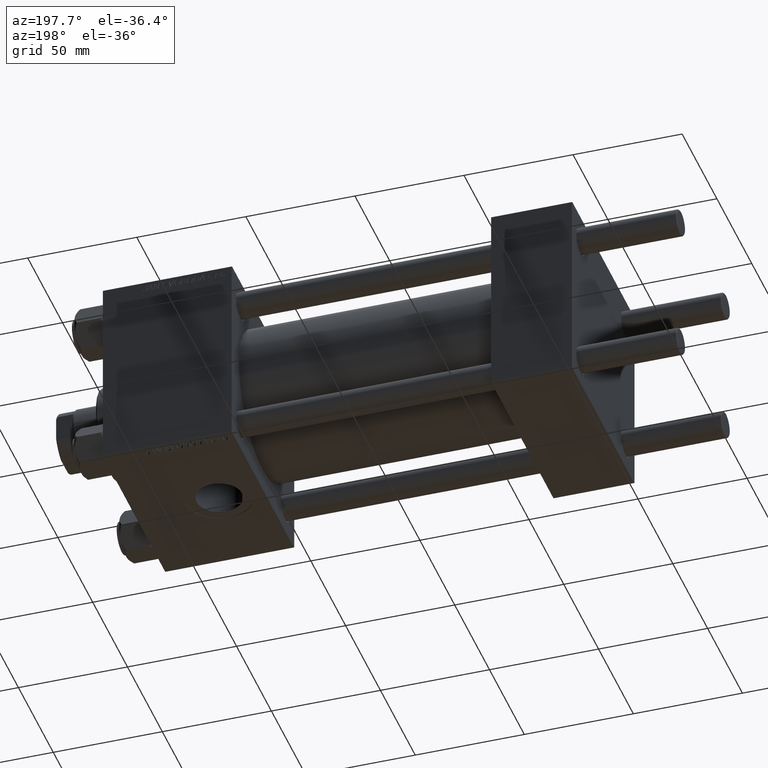
[diagram: clean part render]
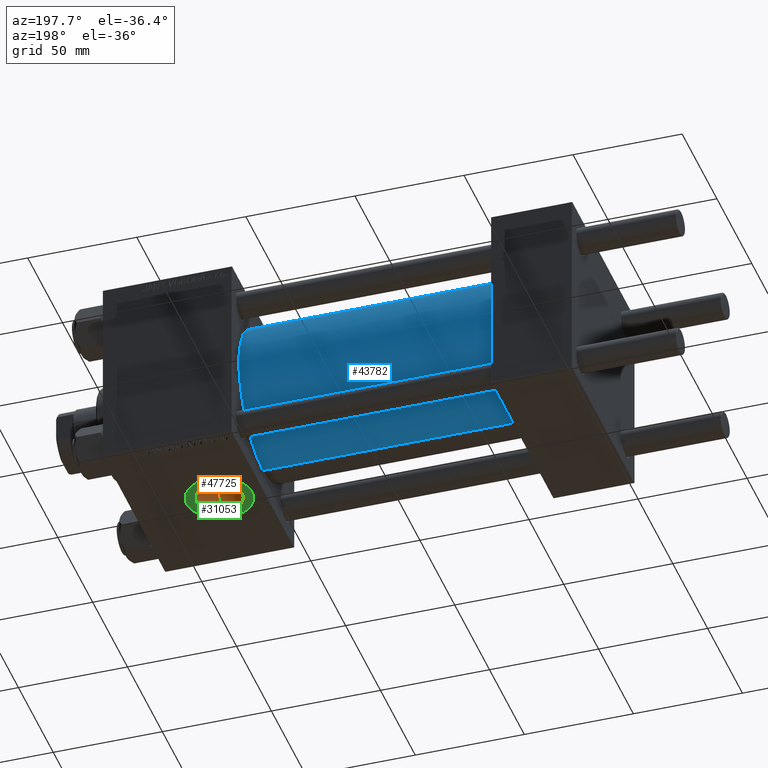
[diagram: same view with three faces highlighted in distinct colors, each labeled with its STEP entity id]
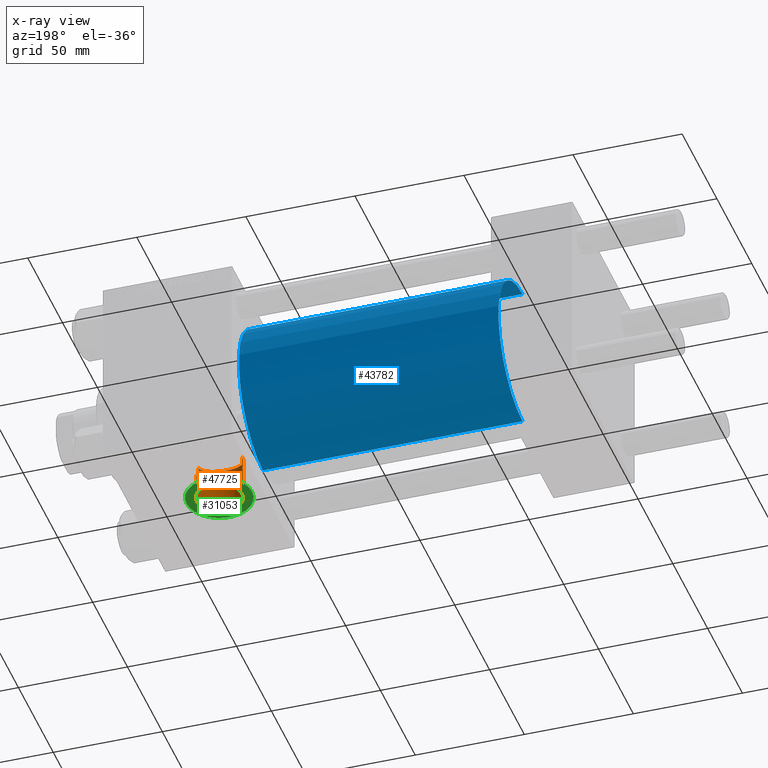
[diagram: x-ray of the same camera — body ghosted, the three highlighted faces saturated]
A machine part, auxiliary view with three faces highlighted in distinct colors.
The next image is the same camera in x-ray (body ghosted, the three faces saturated) — at least one of them is partly hidden behind the body in this view.
Their STEP definitions:

[orange] entity #47725 — the highlighted cylindrical surface (edge-blend (fillet) strip) has radius 10.48 mm, axis along (-0, -0, -1).
#190 = CARTESIAN_POINT ( 'NONE',  ( 186.1786094161472818, -2.580503443403245889, -24.87491648879076678 ) ) ;
#934 = CARTESIAN_POINT ( 'NONE',  ( 184.5617753468522153, -6.078148766063359076, -24.25639871560570526 ) ) ;
#1973 = LINE ( 'NONE', #24992, #11387 ) ;
#2133 = DIRECTION ( 'NONE',  ( -0.000000000000000000, -0.000000000000000000, -1.000000000000000000 ) ) ;
#2264 = CARTESIAN_POINT ( 'NONE',  ( 165.5200000000000102, 0.000000000000000000, 45.00100000000001899 ) ) ;
#2522 = CARTESIAN_POINT ( 'NONE',  ( 186.2999999999999829, -1.934011375354246276, -29.93759509379469819 ) ) ;
#4319 = CARTESIAN_POINT ( 'NONE',  ( 186.4799999999999898, 3.211609313723368512E-16, -30.00000000000000000 ) ) ;
#4379 = EDGE_CURVE ( 'NONE', #20457, #23580, #21238, .T. ) ;
#4490 = CARTESIAN_POINT ( 'NONE',  ( 185.5188295761804227, -4.396109388522424055, -24.61219324324235558 ) ) ;
#4736 = EDGE_CURVE ( 'NONE', #7323, #11211, #32859, .T. ) ;
#6528 = CARTESIAN_POINT ( 'NONE',  ( 167.4437381693998361, -6.085402802302656511, -24.25447456549319014 ) ) ;
#6785 = CARTESIAN_POINT ( 'NONE',  ( 175.0235039242022310, -10.44949535005050301, -22.71146874282110772 ) ) ;
#7278 = CARTESIAN_POINT ( 'NONE',  ( 165.7624658305543335, -2.264613839882682722, -24.89927104389817103 ) ) ;
#7323 = VERTEX_POINT ( 'NONE', #27364 ) ;
#7521 = CARTESIAN_POINT ( 'NONE',  ( 171.0248463731257402, -9.229325018898098421, -23.23452960213939988 ) ) ;
#7834 = CYLINDRICAL_SURFACE ( 'NONE', #33940, 10.47999999999998977 ) ;
#7959 = DIRECTION ( 'NONE',  ( 0.000000000000000000, 0.000000000000000000, -1.000000000000000000 ) ) ;
#9099 = DIRECTION ( 'NONE',  ( -0.000000000000000000, -0.000000000000000000, -1.000000000000000000 ) ) ;
#10315 = CARTESIAN_POINT ( 'NONE',  ( 167.8366666851091793, -6.602754969198486812, -24.11729512780175000 ) ) ;
#10908 = ORIENTED_EDGE ( 'NONE', *, *, #32405, .T. ) ;
#11141 = DIRECTION ( 'NONE',  ( -0.000000000000000000, -0.000000000000000000, -1.000000000000000000 ) ) ;
#11211 = VERTEX_POINT ( 'NONE', #18057 ) ;
#11324 = CARTESIAN_POINT ( 'NONE',  ( 169.1664433524416040, -7.971438572255705068, -23.69861894829193361 ) ) ;
#11387 = VECTOR ( 'NONE', #20952, 1000.000000000000000 ) ;
#11910 = VERTEX_POINT ( 'NONE', #21357 ) ;
#13264 = CARTESIAN_POINT ( 'NONE',  ( 186.2999999999999829, -1.934011375354246276, -24.92507973909011199 ) ) ;
#14834 = CIRCLE ( 'NONE', #49515, 10.47999999999998977 ) ;
#15134 = CARTESIAN_POINT ( 'NONE',  ( 166.4771871709745028, -4.423433031421226680, -24.61313550369477454 ) ) ;
#15635 = CARTESIAN_POINT ( 'NONE',  ( 177.6368862508291215, -10.37226752492872883, -22.74688258904294713 ) ) ;
#16383 = CARTESIAN_POINT ( 'NONE',  ( 185.0731273901010923, -5.254819858100577612, -24.44311888910906916 ) ) ;
#16761 = CARTESIAN_POINT ( 'NONE',  ( 176.0000000000000000, 0.000000000000000000, -44.79999999999999716 ) ) ;
#16893 = VERTEX_POINT ( 'NONE', #13264 ) ;
#17943 = CARTESIAN_POINT ( 'NONE',  ( 173.4216632649265648, -10.16312239748898705, -22.84120449468248282 ) ) ;
#18057 = CARTESIAN_POINT ( 'NONE',  ( 165.5200000000000102, 0.000000000000000000, -44.79999999999999716 ) ) ;
#18197 = CARTESIAN_POINT ( 'NONE',  ( 171.8825192181714954, -9.658443335916404138, -23.06099947694143992 ) ) ;
#18791 = B_SPLINE_CURVE_WITH_KNOTS ( 'NONE', 3,
 ( #30308, #26526, #41931, #7278, #22723, #34340, #44964, #15134, #41437, #6528, #10315, #30545, #11324, #26778, #21979, #42173, #7521, #18197, #33587, #17943, #25772, #41180, #6785, #49013, #47217, #34833, #15635, #31041, #23473, #27771, #34580, #35083, #19431, #39132, #35583, #31291, #43409, #934, #16383, #43166, #4490, #46468, #31544, #190, #19929 ),
 .UNSPECIFIED., .F., .F.,
 ( 4, 2, 2, 2, 2, 2, 2, 2, 2, 2, 2, 1, 2, 2, 2, 2, 2, 2, 2, 2, 2, 2, 4 ),
 ( 0.000000000000000000, 0.001950832952766653550, 0.002926249429149981301, 0.003901665905533308835, 0.005852498858299995561, 0.007803331811066681854, 0.009754164763833369015, 0.01072958124021668007, 0.01170499771659999112, 0.01365583066936654037, 0.01463124714574985143, 0.01560666362213316595, 0.01658208009851647874, 0.01755749657489978979, 0.01950832952766641884, 0.02145916248043304095, 0.02340999543319967000, 0.02438541190958301574, 0.02536082838596635455, 0.02731166133873305299, 0.02828707781511637792, 0.02926249429149969591, 0.03121332724426637353 ),
 .UNSPECIFIED. ) ;
#19431 = CARTESIAN_POINT ( 'NONE',  ( 182.5881842815778953, -8.156529320537604377, -23.63288506601811179 ) ) ;
#19497 = FACE_OUTER_BOUND ( 'NONE', #23468, .T. ) ;
#19929 = CARTESIAN_POINT ( 'NONE',  ( 186.2999999999999829, -1.934011375354246276, -24.92507973909011199 ) ) ;
#20457 = VERTEX_POINT ( 'NONE', #4319 ) ;
#20952 = DIRECTION ( 'NONE',  ( -0.000000000000000000, -0.000000000000000000, -1.000000000000000000 ) ) ;
#21238 = B_SPLINE_CURVE_WITH_KNOTS ( 'NONE', 3,
 ( #28712, #47417, #39578, #36034 ),
 .UNSPECIFIED., .F., .F.,
 ( 4, 4 ),
 ( 0.001934011375354245969, 0.003868022750708492372 ),
 .UNSPECIFIED. ) ;
#21357 = CARTESIAN_POINT ( 'NONE',  ( 186.4799999999999898, 1.283429845506424108E-15, -44.79999999999999716 ) ) ;
#21979 = CARTESIAN_POINT ( 'NONE',  ( 170.2003815447181978, -8.734860140023595676, -23.42509368751975884 ) ) ;
#22723 = CARTESIAN_POINT ( 'NONE',  ( 165.8374462348556051, -2.580507450933927860, -24.86846075284818980 ) ) ;
#22789 = DIRECTION ( 'NONE',  ( -1.000000000000000000, 0.000000000000000000, 0.000000000000000000 ) ) ;
#23410 = DIRECTION ( 'NONE',  ( -1.000000000000000000, 0.000000000000000000, 0.000000000000000000 ) ) ;
#23468 = EDGE_LOOP ( 'NONE', ( #40425, #39690, #33527, #40839, #29145, #10908 ) ) ;
#23473 = CARTESIAN_POINT ( 'NONE',  ( 179.5191464987686345, -9.892677015601863744, -22.96025190858006226 ) ) ;
#23580 = VERTEX_POINT ( 'NONE', #2522 ) ;
#24992 = CARTESIAN_POINT ( 'NONE',  ( 186.4799999999999898, 1.283429845506424503E-15, 45.00100000000001899 ) ) ;
#25772 = CARTESIAN_POINT ( 'NONE',  ( 173.7415073116948463, -10.23891767422755983, -22.80721217129550737 ) ) ;
#26101 = VECTOR ( 'NONE', #2133, 1000.000000000000000 ) ;
#26526 = CARTESIAN_POINT ( 'NONE',  ( 165.5199999999999818, -0.6601608298313265122, -24.99999999999999289 ) ) ;
#26778 = CARTESIAN_POINT ( 'NONE',  ( 169.9333177349950006, -8.551520252980353121, -23.49284134805247604 ) ) ;
#27083 = VECTOR ( 'NONE', #9099, 1000.000000000000000 ) ;
#27233 = EDGE_CURVE ( 'NONE', #20457, #11910, #1973, .T. ) ;
#27364 = CARTESIAN_POINT ( 'NONE',  ( 165.5200000000000102, 0.000000000000000000, -25.00000000000000000 ) ) ;
#27771 = CARTESIAN_POINT ( 'NONE',  ( 180.1305158875483414, -9.653130961559705625, -23.06326223111442530 ) ) ;
#28712 = CARTESIAN_POINT ( 'NONE',  ( 186.4799999999999898, 3.211609313723368512E-16, -30.00000000000000000 ) ) ;
#29145 = ORIENTED_EDGE ( 'NONE', *, *, #46660, .T. ) ;
#30308 = CARTESIAN_POINT ( 'NONE',  ( 165.5200000000000102, 0.000000000000000000, -25.00000000000000000 ) ) ;
#30545 = CARTESIAN_POINT ( 'NONE',  ( 168.6967142337210532, -7.543102876757548536, -23.83992232486123797 ) ) ;
#31041 = CARTESIAN_POINT ( 'NONE',  ( 178.2749142050032560, -10.25057149502832665, -22.80271936120305298 ) ) ;
#31291 = CARTESIAN_POINT ( 'NONE',  ( 183.5339987138303286, -7.291805948712668517, -23.91421447840232517 ) ) ;
#31544 = CARTESIAN_POINT ( 'NONE',  ( 185.9988722560858321, -3.204076007657119529, -24.80123261187421591 ) ) ;
#32405 = EDGE_CURVE ( 'NONE', #16893, #23580, #40566, .T. ) ;
#32859 = LINE ( 'NONE', #2264, #27083 ) ;
#33527 = ORIENTED_EDGE ( 'NONE', *, *, #36530, .T. ) ;
#33587 = CARTESIAN_POINT ( 'NONE',  ( 172.4807482312076843, -9.892986188757108224, -22.96012941614320724 ) ) ;
#33940 = AXIS2_PLACEMENT_3D ( 'NONE', #39636, #11141, #22789 ) ;
#34340 = CARTESIAN_POINT ( 'NONE',  ( 166.0173339090779052, -3.206695409753061554, -24.79549280553514734 ) ) ;
#34580 = CARTESIAN_POINT ( 'NONE',  ( 181.2799622129796830, -9.075577000269422712, -23.29658567718353268 ) ) ;
#34833 = CARTESIAN_POINT ( 'NONE',  ( 176.6542654199454887, -10.46472977730310916, -22.70441765318205185 ) ) ;
#35083 = CARTESIAN_POINT ( 'NONE',  ( 181.8219997909139352, -8.737602026521598120, -23.42697631423590110 ) ) ;
#35583 = CARTESIAN_POINT ( 'NONE',  ( 183.3089726448283727, -7.517432179555863847, -23.84407310758563980 ) ) ;
#36034 = CARTESIAN_POINT ( 'NONE',  ( 186.2999999999999829, -1.934011375354246276, -29.93759509379469819 ) ) ;
#36530 = EDGE_CURVE ( 'NONE', #11910, #11211, #14834, .T. ) ;
#39132 = CARTESIAN_POINT ( 'NONE',  ( 182.8365438491401278, -7.949499097166802919, -23.70352448557503067 ) ) ;
#39578 = CARTESIAN_POINT ( 'NONE',  ( 186.4210485436892952, -1.289340916902830481, -29.97924172559974565 ) ) ;
#39636 = CARTESIAN_POINT ( 'NONE',  ( 176.0000000000000000, 0.000000000000000000, 45.00100000000001899 ) ) ;
#39690 = ORIENTED_EDGE ( 'NONE', *, *, #27233, .T. ) ;
#40425 = ORIENTED_EDGE ( 'NONE', *, *, #4379, .F. ) ;
#40566 = LINE ( 'NONE', #48147, #26101 ) ;
#40839 = ORIENTED_EDGE ( 'NONE', *, *, #4736, .F. ) ;
#41180 = CARTESIAN_POINT ( 'NONE',  ( 174.3808898847619844, -10.35928119115758506, -22.75279445186081517 ) ) ;
#41437 = CARTESIAN_POINT ( 'NONE',  ( 166.7655333888332905, -4.996635887004877041, -24.50194468867979936 ) ) ;
#41931 = CARTESIAN_POINT ( 'NONE',  ( 165.5818071920056980, -1.308581473532921313, -24.97391262842696591 ) ) ;
#42173 = CARTESIAN_POINT ( 'NONE',  ( 170.7456161584479730, -9.073301843224163221, -23.29609386993012521 ) ) ;
#43166 = CARTESIAN_POINT ( 'NONE',  ( 185.2312658750376784, -4.971682270679324667, -24.50241231793253149 ) ) ;
#43409 = CARTESIAN_POINT ( 'NONE',  ( 184.1765169174771017, -6.586323219591029066, -24.12178888262457122 ) ) ;
#44964 = CARTESIAN_POINT ( 'NONE',  ( 166.1227396704030923, -3.517841578496979871, -24.75314304094078466 ) ) ;
#46468 = CARTESIAN_POINT ( 'NONE',  ( 185.6489970835540078, -4.102504435787655446, -24.66295334884139479 ) ) ;
#46660 = EDGE_CURVE ( 'NONE', #7323, #16893, #18791, .T. ) ;
#47217 = CARTESIAN_POINT ( 'NONE',  ( 176.3249356798895349, -10.48003868634411795, -22.69733000012453772 ) ) ;
#47417 = CARTESIAN_POINT ( 'NONE',  ( 186.4799999999999898, -0.6446704584514152403, -30.00000000000000000 ) ) ;
#47725 = ADVANCED_FACE ( 'NONE', ( #19497 ), #7834, .F. ) ;
#48147 = CARTESIAN_POINT ( 'NONE',  ( 186.2999999999999829, -1.934011375354246276, 45.00100000000001899 ) ) ;
#49013 = CARTESIAN_POINT ( 'NONE',  ( 175.6725736275517988, -10.47996116567041724, -22.69736579358632866 ) ) ;
#49515 = AXIS2_PLACEMENT_3D ( 'NONE', #16761, #7959, #23410 ) ;

[blue] entity #43782 — the highlighted cylindrical surface (partial cylindrical patch) has radius 34.5 mm, axis along (-1, -0, -0).
#1524 = VERTEX_POINT ( 'NONE', #31928 ) ;
#2136 = CARTESIAN_POINT ( 'NONE',  ( 156.0000000000000000, 0.000000000000000000, 34.49999999999999289 ) ) ;
#2471 = VERTEX_POINT ( 'NONE', #18402 ) ;
#3422 = LINE ( 'NONE', #49446, #13754 ) ;
#4946 = ORIENTED_EDGE ( 'NONE', *, *, #36996, .F. ) ;
#6540 = AXIS2_PLACEMENT_3D ( 'NONE', #40215, #9366, #35920 ) ;
#9144 = VECTOR ( 'NONE', #32975, 1000.000000000000000 ) ;
#9366 = DIRECTION ( 'NONE',  ( 1.000000000000000000, -0.000000000000000000, 0.000000000000000000 ) ) ;
#11453 = CIRCLE ( 'NONE', #12286, 34.49999999999999289 ) ;
#11701 = EDGE_LOOP ( 'NONE', ( #47218, #31664, #21859, #4946 ) ) ;
#12286 = AXIS2_PLACEMENT_3D ( 'NONE', #17538, #32933, #13726 ) ;
#13726 = DIRECTION ( 'NONE',  ( 0.000000000000000000, 0.000000000000000000, -1.000000000000000000 ) ) ;
#13754 = VECTOR ( 'NONE', #42595, 1000.000000000000000 ) ;
#14309 = EDGE_CURVE ( 'NONE', #38529, #2471, #3422, .T. ) ;
#17079 = LINE ( 'NONE', #2136, #9144 ) ;
#17538 = CARTESIAN_POINT ( 'NONE',  ( 156.0000000000000000, 0.000000000000000000, 0.000000000000000000 ) ) ;
#18402 = CARTESIAN_POINT ( 'NONE',  ( 37.00000000000000711, 4.225031457058367344E-15, -34.49999999999999289 ) ) ;
#20873 = CARTESIAN_POINT ( 'NONE',  ( 156.0000000000000000, 0.000000000000000000, 0.000000000000000000 ) ) ;
#21859 = ORIENTED_EDGE ( 'NONE', *, *, #26948, .T. ) ;
#22551 = CARTESIAN_POINT ( 'NONE',  ( 37.00000000000000711, 0.000000000000000000, 34.49999999999999289 ) ) ;
#25968 = VERTEX_POINT ( 'NONE', #22551 ) ;
#26948 = EDGE_CURVE ( 'NONE', #2471, #25968, #28379, .T. ) ;
#28379 = CIRCLE ( 'NONE', #6540, 34.49999999999999289 ) ;
#28957 = CYLINDRICAL_SURFACE ( 'NONE', #48119, 34.49999999999999289 ) ;
#29496 = EDGE_CURVE ( 'NONE', #38529, #1524, #11453, .T. ) ;
#31664 = ORIENTED_EDGE ( 'NONE', *, *, #14309, .T. ) ;
#31928 = CARTESIAN_POINT ( 'NONE',  ( 156.0000000000000000, 0.000000000000000000, 34.49999999999999289 ) ) ;
#32933 = DIRECTION ( 'NONE',  ( 1.000000000000000000, 0.000000000000000000, 0.000000000000000000 ) ) ;
#32975 = DIRECTION ( 'NONE',  ( -1.000000000000000000, -0.000000000000000000, -0.000000000000000000 ) ) ;
#35920 = DIRECTION ( 'NONE',  ( 0.000000000000000000, 0.000000000000000000, 1.000000000000000000 ) ) ;
#35921 = CARTESIAN_POINT ( 'NONE',  ( 156.0000000000000000, 4.225031457058367344E-15, -34.49999999999999289 ) ) ;
#36282 = FACE_OUTER_BOUND ( 'NONE', #11701, .T. ) ;
#36532 = DIRECTION ( 'NONE',  ( -1.000000000000000000, -0.000000000000000000, -0.000000000000000000 ) ) ;
#36996 = EDGE_CURVE ( 'NONE', #1524, #25968, #17079, .T. ) ;
#38529 = VERTEX_POINT ( 'NONE', #35921 ) ;
#40215 = CARTESIAN_POINT ( 'NONE',  ( 37.00000000000000711, 0.000000000000000000, 0.000000000000000000 ) ) ;
#42595 = DIRECTION ( 'NONE',  ( -1.000000000000000000, -0.000000000000000000, -0.000000000000000000 ) ) ;
#43782 = ADVANCED_FACE ( 'NONE', ( #36282 ), #28957, .T. ) ;
#44861 = DIRECTION ( 'NONE',  ( 0.000000000000000000, 0.000000000000000000, 1.000000000000000000 ) ) ;
#47218 = ORIENTED_EDGE ( 'NONE', *, *, #29496, .F. ) ;
#48119 = AXIS2_PLACEMENT_3D ( 'NONE', #20873, #36532, #44861 ) ;
#49446 = CARTESIAN_POINT ( 'NONE',  ( 156.0000000000000000, 4.225031457058367344E-15, -34.49999999999999289 ) ) ;

[green] entity #31053 — the highlighted planar face has unit normal (0, 0, -1).
#489 = FACE_OUTER_BOUND ( 'NONE', #6061, .T. ) ;
#699 = AXIS2_PLACEMENT_3D ( 'NONE', #43150, #35815, #24450 ) ;
#2916 = CIRCLE ( 'NONE', #16651, 15.00000000000001421 ) ;
#3020 = CARTESIAN_POINT ( 'NONE',  ( 176.0000000000000000, 0.000000000000000000, -44.79999999999999716 ) ) ;
#4977 = VERTEX_POINT ( 'NONE', #6242 ) ;
#6061 = EDGE_LOOP ( 'NONE', ( #16321, #21373 ) ) ;
#6242 = CARTESIAN_POINT ( 'NONE',  ( 160.9999999999999716, 0.000000000000000000, -44.79999999999999716 ) ) ;
#6371 = ORIENTED_EDGE ( 'NONE', *, *, #36530, .F. ) ;
#6724 = EDGE_CURVE ( 'NONE', #16573, #4977, #2916, .T. ) ;
#7959 = DIRECTION ( 'NONE',  ( 0.000000000000000000, 0.000000000000000000, -1.000000000000000000 ) ) ;
#8819 = FACE_BOUND ( 'NONE', #19288, .T. ) ;
#9802 = CARTESIAN_POINT ( 'NONE',  ( 176.0000000000000000, 0.000000000000000000, -44.79999999999999716 ) ) ;
#11211 = VERTEX_POINT ( 'NONE', #18057 ) ;
#11910 = VERTEX_POINT ( 'NONE', #21357 ) ;
#13262 = EDGE_CURVE ( 'NONE', #4977, #16573, #43509, .T. ) ;
#13577 = CARTESIAN_POINT ( 'NONE',  ( 191.0000000000000000, 1.836970198721034716E-15, -44.79999999999999716 ) ) ;
#14834 = CIRCLE ( 'NONE', #49515, 10.47999999999998977 ) ;
#16321 = ORIENTED_EDGE ( 'NONE', *, *, #13262, .T. ) ;
#16439 = CARTESIAN_POINT ( 'NONE',  ( 176.0000000000000000, 0.000000000000000000, -44.79999999999999716 ) ) ;
#16573 = VERTEX_POINT ( 'NONE', #13577 ) ;
#16651 = AXIS2_PLACEMENT_3D ( 'NONE', #9802, #48230, #28290 ) ;
#16761 = CARTESIAN_POINT ( 'NONE',  ( 176.0000000000000000, 0.000000000000000000, -44.79999999999999716 ) ) ;
#18057 = CARTESIAN_POINT ( 'NONE',  ( 165.5200000000000102, 0.000000000000000000, -44.79999999999999716 ) ) ;
#19288 = EDGE_LOOP ( 'NONE', ( #19871, #6371 ) ) ;
#19871 = ORIENTED_EDGE ( 'NONE', *, *, #20681, .F. ) ;
#20681 = EDGE_CURVE ( 'NONE', #11211, #11910, #44285, .T. ) ;
#21357 = CARTESIAN_POINT ( 'NONE',  ( 186.4799999999999898, 1.283429845506424108E-15, -44.79999999999999716 ) ) ;
#21373 = ORIENTED_EDGE ( 'NONE', *, *, #6724, .T. ) ;
#23410 = DIRECTION ( 'NONE',  ( -1.000000000000000000, 0.000000000000000000, 0.000000000000000000 ) ) ;
#24014 = DIRECTION ( 'NONE',  ( 0.000000000000000000, 0.000000000000000000, -1.000000000000000000 ) ) ;
#24450 = DIRECTION ( 'NONE',  ( -1.000000000000000000, 0.000000000000000000, 0.000000000000000000 ) ) ;
#27569 = DIRECTION ( 'NONE',  ( -1.000000000000000000, 0.000000000000000000, -0.000000000000000000 ) ) ;
#28290 = DIRECTION ( 'NONE',  ( -1.000000000000000000, 0.000000000000000000, 0.000000000000000000 ) ) ;
#31053 = ADVANCED_FACE ( 'NONE', ( #8819, #489 ), #39677, .T. ) ;
#31708 = AXIS2_PLACEMENT_3D ( 'NONE', #16439, #24014, #27569 ) ;
#33859 = DIRECTION ( 'NONE',  ( 0.000000000000000000, 0.000000000000000000, -1.000000000000000000 ) ) ;
#35396 = AXIS2_PLACEMENT_3D ( 'NONE', #3020, #33859, #50034 ) ;
#35815 = DIRECTION ( 'NONE',  ( 0.000000000000000000, 0.000000000000000000, -1.000000000000000000 ) ) ;
#36530 = EDGE_CURVE ( 'NONE', #11910, #11211, #14834, .T. ) ;
#39677 = PLANE ( 'NONE',  #31708 ) ;
#43150 = CARTESIAN_POINT ( 'NONE',  ( 176.0000000000000000, 0.000000000000000000, -44.79999999999999716 ) ) ;
#43509 = CIRCLE ( 'NONE', #699, 15.00000000000001421 ) ;
#44285 = CIRCLE ( 'NONE', #35396, 10.47999999999998977 ) ;
#48230 = DIRECTION ( 'NONE',  ( 0.000000000000000000, 0.000000000000000000, -1.000000000000000000 ) ) ;
#49515 = AXIS2_PLACEMENT_3D ( 'NONE', #16761, #7959, #23410 ) ;
#50034 = DIRECTION ( 'NONE',  ( -1.000000000000000000, 0.000000000000000000, 0.000000000000000000 ) ) ;